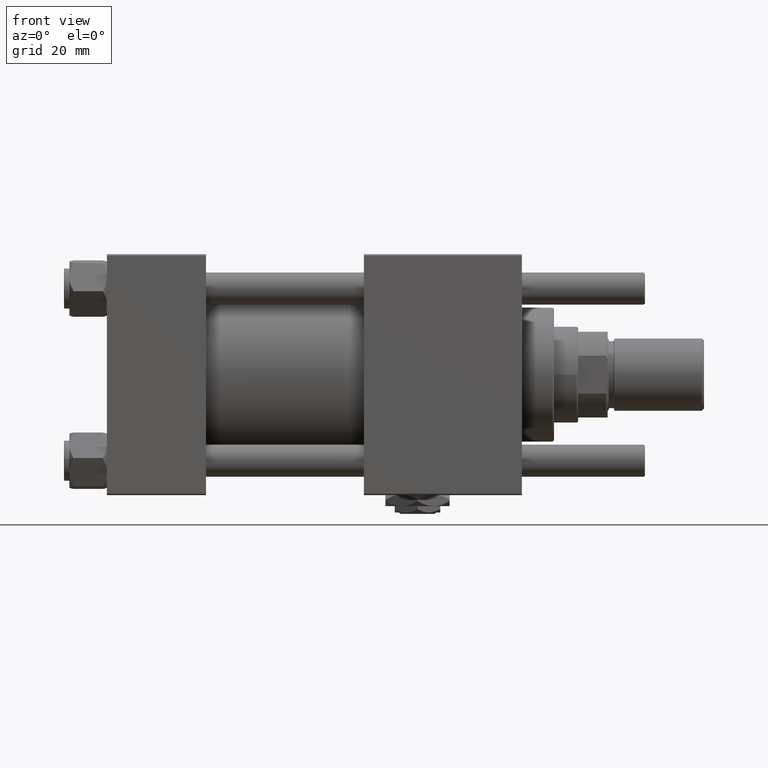
[diagram: clean part render]
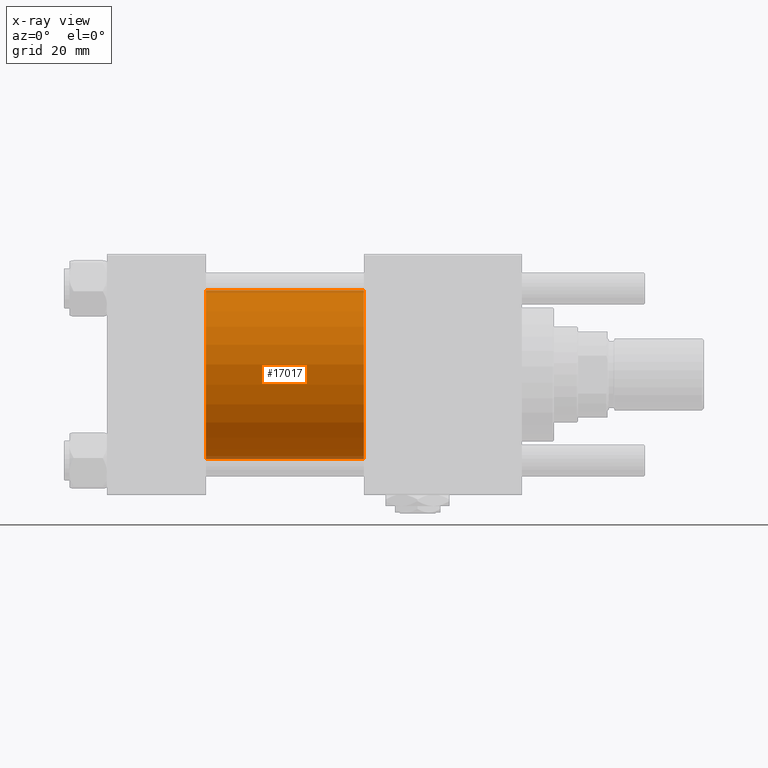
[diagram: x-ray — body ghosted, one internal face saturated and labeled with its STEP entity id]
A machine part, front view, then the same camera in x-ray: the body is ghosted and one INTERNAL B-rep face — a face not visible from any outside direction — is saturated and labeled: STEP entity #17017.
In plain terms, the highlighted cylindrical surface (partial cylindrical patch) has radius 31.5 mm, axis along (-1, -0, -0).
Its self-contained STEP definition (entity closure, byte-faithful):
#1352 = DIRECTION ( 'NONE',  ( -1.000000000000000000, -0.000000000000000000, -0.000000000000000000 ) ) ;
#1846 = FACE_OUTER_BOUND ( 'NONE', #26404, .T. ) ;
#1945 = LINE ( 'NONE', #33237, #26467 ) ;
#4000 = EDGE_CURVE ( 'NONE', #41667, #22318, #11871, .T. ) ;
#6525 = CARTESIAN_POINT ( 'NONE',  ( 37.00000000000000000, -2.602085213965210642E-15, 0.000000000000000000 ) ) ;
#9202 = CARTESIAN_POINT ( 'NONE',  ( 37.00000000000000000, 1.255552203348951850E-15, -31.50000000000000000 ) ) ;
#10666 = DIRECTION ( 'NONE',  ( 1.000000000000000000, 0.000000000000000000, 0.000000000000000000 ) ) ;
#11871 = CIRCLE ( 'NONE', #21378, 31.50000000000000000 ) ;
#12840 = ORIENTED_EDGE ( 'NONE', *, *, #48357, .F. ) ;
#12907 = CIRCLE ( 'NONE', #46184, 31.50000000000000000 ) ;
#16922 = DIRECTION ( 'NONE',  ( 1.000000000000000000, 0.000000000000000000, 0.000000000000000000 ) ) ;
#17017 = ADVANCED_FACE ( 'NONE', ( #1846 ), #29554, .F. ) ;
#18668 = VECTOR ( 'NONE', #34835, 1000.000000000000000 ) ;
#19594 = ORIENTED_EDGE ( 'NONE', *, *, #57912, .T. ) ;
#21378 = AXIS2_PLACEMENT_3D ( 'NONE', #46110, #10666, #37772 ) ;
#22318 = VERTEX_POINT ( 'NONE', #55894 ) ;
#24172 = CARTESIAN_POINT ( 'NONE',  ( 96.00000000000000000, -2.602085213965210642E-15, 31.50000000000000000 ) ) ;
#25886 = LINE ( 'NONE', #26484, #18668 ) ;
#26404 = EDGE_LOOP ( 'NONE', ( #33895, #19594, #28145, #12840 ) ) ;
#26467 = VECTOR ( 'NONE', #1352, 1000.000000000000000 ) ;
#26484 = CARTESIAN_POINT ( 'NONE',  ( 96.00000000000000000, -2.602085213965210642E-15, 31.50000000000000000 ) ) ;
#28145 = ORIENTED_EDGE ( 'NONE', *, *, #46606, .F. ) ;
#28662 = DIRECTION ( 'NONE',  ( 0.000000000000000000, 0.000000000000000000, 1.000000000000000000 ) ) ;
#29554 = CYLINDRICAL_SURFACE ( 'NONE', #38805, 31.50000000000000000 ) ;
#33237 = CARTESIAN_POINT ( 'NONE',  ( 96.00000000000000000, 1.255552203348951850E-15, -31.50000000000000000 ) ) ;
#33895 = ORIENTED_EDGE ( 'NONE', *, *, #4000, .T. ) ;
#34835 = DIRECTION ( 'NONE',  ( -1.000000000000000000, -0.000000000000000000, -0.000000000000000000 ) ) ;
#35098 = DIRECTION ( 'NONE',  ( 0.000000000000000000, 0.000000000000000000, -1.000000000000000000 ) ) ;
#37607 = CARTESIAN_POINT ( 'NONE',  ( 96.00000000000000000, -2.602085213965210642E-15, 0.000000000000000000 ) ) ;
#37772 = DIRECTION ( 'NONE',  ( 0.000000000000000000, 0.000000000000000000, -1.000000000000000000 ) ) ;
#38625 = VERTEX_POINT ( 'NONE', #54113 ) ;
#38805 = AXIS2_PLACEMENT_3D ( 'NONE', #37607, #47723, #28662 ) ;
#41667 = VERTEX_POINT ( 'NONE', #24172 ) ;
#46110 = CARTESIAN_POINT ( 'NONE',  ( 96.00000000000000000, -2.602085213965210642E-15, 0.000000000000000000 ) ) ;
#46184 = AXIS2_PLACEMENT_3D ( 'NONE', #6525, #16922, #35098 ) ;
#46606 = EDGE_CURVE ( 'NONE', #38625, #48513, #12907, .T. ) ;
#47723 = DIRECTION ( 'NONE',  ( -1.000000000000000000, -0.000000000000000000, -0.000000000000000000 ) ) ;
#48357 = EDGE_CURVE ( 'NONE', #41667, #38625, #25886, .T. ) ;
#48513 = VERTEX_POINT ( 'NONE', #9202 ) ;
#54113 = CARTESIAN_POINT ( 'NONE',  ( 37.00000000000000000, -2.602085213965210642E-15, 31.50000000000000000 ) ) ;
#55894 = CARTESIAN_POINT ( 'NONE',  ( 96.00000000000000000, 1.255552203348951850E-15, -31.50000000000000000 ) ) ;
#57912 = EDGE_CURVE ( 'NONE', #22318, #48513, #1945, .T. ) ;